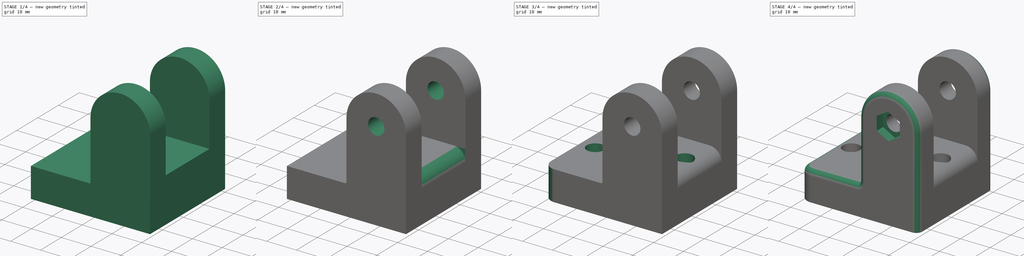
[diagram: build sequence overview — one tinted view per stage of 4, left to right]
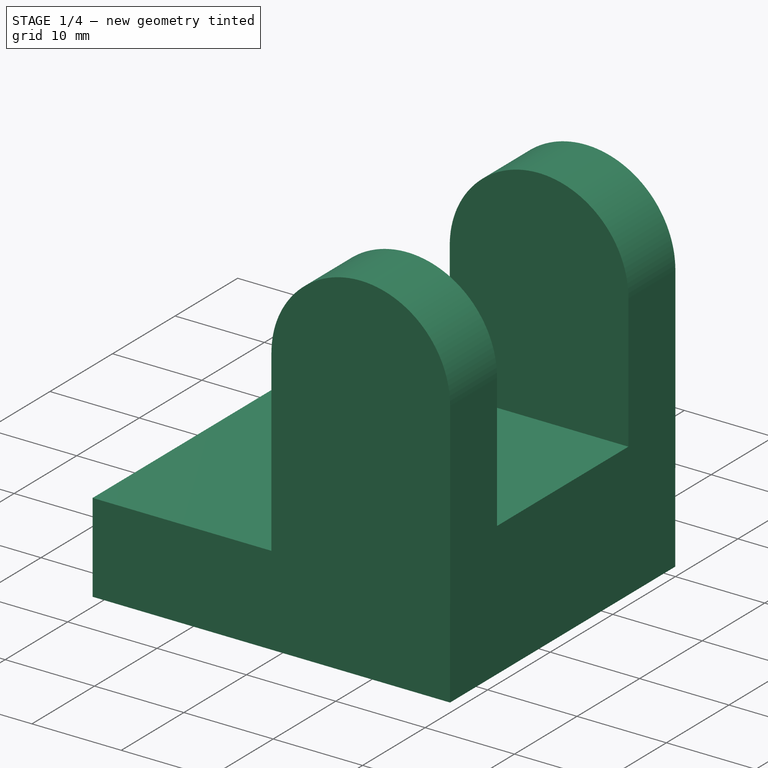
[diagram: stage 1 of 4 — iso view after this stage's code; geometry added in this stage tinted green]
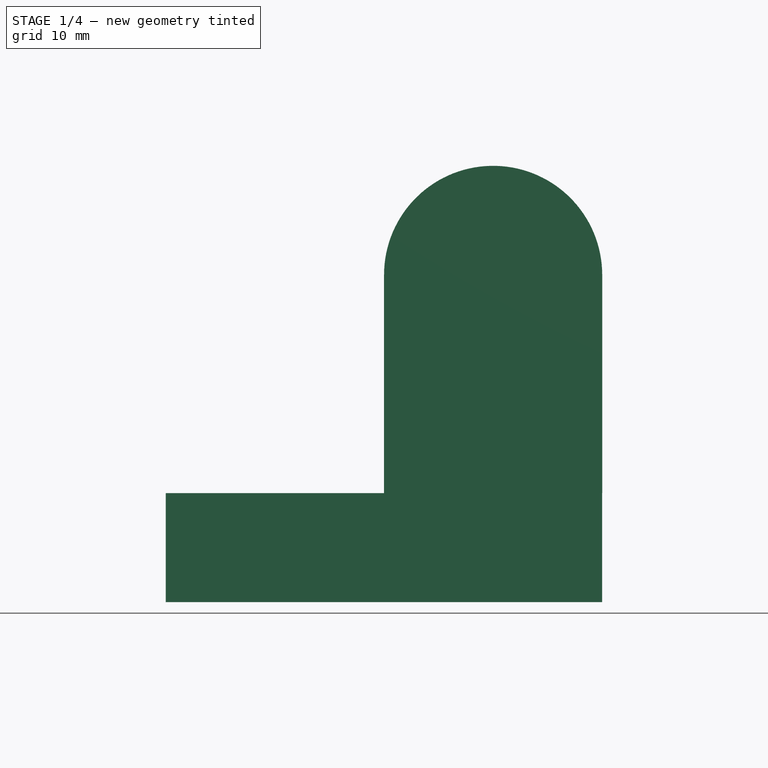
[diagram: stage 1 of 4 — front view after this stage's code; geometry added in this stage tinted green]
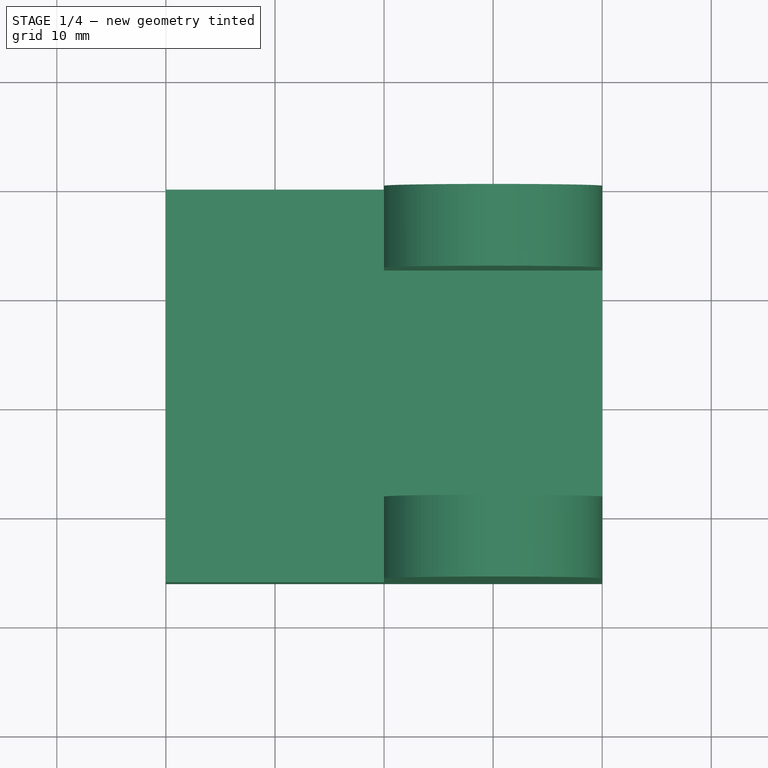
[diagram: stage 1 of 4 — top view after this stage's code; geometry added in this stage tinted green]
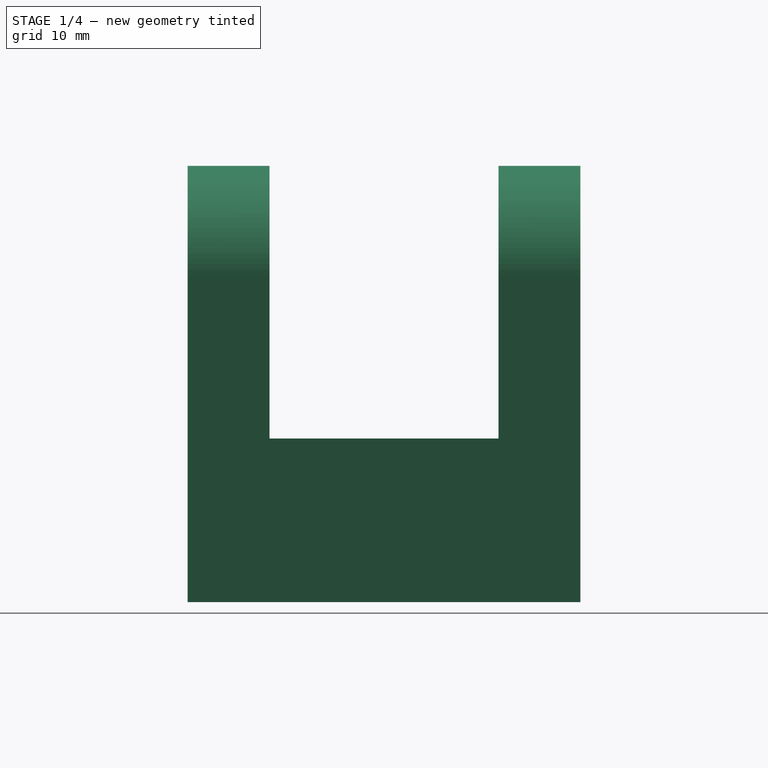
[diagram: stage 1 of 4 — right view after this stage's code; geometry added in this stage tinted green]
FCSTD DOCUMENT  (FreeCAD 1.0R38641 +468 (Git))
Label: 04pulley_holder_screw
License: All rights reserved
LicenseURL: https://en.wikipedia.org/wiki/All_rights_reserved
objects: Sketcher::SketchObject×5, PartDesign::Fillet×4, PartDesign::Pocket×3, PartDesign::Plane×2, PartDesign::Pad×1, PartDesign::Hole×1, PartDesign::Chamfer×1, PartDesign::Body×1
note: 43 computed .brp shape members not serialized (recipe doc carries the construction recipe); baked Part::Feature solids carry a one-line shape summary decoded from their .brp

FEATURE [Sketcher::SketchObject] Sketch
  ArcFitTolerance = 1e-06
  AttachmentSupport = -> [XZ_Plane]
  FullyConstrained = false
  MakeInternals = false
  MapMode = 5
  Placement = pos=(0,0,0) rot=(1,0,0;1.5708rad)
  sketch-geometry (13):
    g0: LineSegment StartX=-30.0081 StartY=0 StartZ=0 EndX=9.99187 EndY=0 EndZ=0
    g1: LineSegment [constr] StartX=9.99187 StartY=0 StartZ=0 EndX=10 EndY=30 EndZ=0
    g2: LineSegment [constr] StartX=10 StartY=30 StartZ=0 EndX=-10 EndY=30 EndZ=0
    g3: LineSegment [constr] StartX=-10 StartY=30 StartZ=0 EndX=-30.0081 EndY=0 EndZ=0
    g4: Circle [constr] CenterX=-2e-16 CenterY=30 CenterZ=0 NormalX=0 NormalY=0 NormalZ=1 AngleXU=0 Radius=10
    g5: LineSegment [constr] StartX=0 StartY=40 StartZ=0 EndX=0 EndY=0 EndZ=0
    g6: ArcOfCircle CenterX=-2e-16 CenterY=30 CenterZ=0 NormalX=0 NormalY=0 NormalZ=1 AngleXU=0 Radius=10 StartAngle=1e-16 EndAngle=3.14159
    g7: LineSegment StartX=-30.0081 StartY=0 StartZ=0 EndX=-30.0081 EndY=10 EndZ=0
    g8: LineSegment StartX=-30.0081 StartY=10 StartZ=0 EndX=-10 EndY=10 EndZ=0
    g9: LineSegment StartX=-10 StartY=10 StartZ=0 EndX=-10 EndY=30 EndZ=0
    g10: LineSegment StartX=10 StartY=30 StartZ=0 EndX=10 EndY=10 EndZ=0
    g11: LineSegment StartX=10 StartY=10 StartZ=0 EndX=9.99187 EndY=10 EndZ=0
    g12: LineSegment StartX=9.99187 StartY=10 StartZ=0 EndX=9.99187 EndY=0 EndZ=0
  constraints (34):
    c: PointOnObject(g0,g-1)
    c: Coincident(g0,g1)
    c: Coincident(g1,g2)
    c: Coincident(g2,g3)
    c: Coincident(g3,g0)
    c: Symmetric(g1,g2,g-2)
    c: Symmetric(g2,g2,g4)
    c: Diameter(g4) = 20
    c: PointOnObject(g5,g4)
    c: PointOnObject(g5,g0)
    c: Vertical(g5)
    c: PointOnObject(g5,g-2)
    c: DistanceY(g5,g5) = 40
    c: PointOnObject(g2,g4)
    c: Coincident(g6,g4)
    c: Coincident(g6,g2)
    c: Coincident(g6,g1)
    c: Coincident(g0,g7)
    c: Vertical(g7)
    c: Coincident(g7,g8)
    c: Horizontal(g8)
    c: Coincident(g8,g9)
    c: Coincident(g9,g2)
    c: Coincident(g1,g10)
    c: Coincident(g10,g11)
    c: Coincident(g11,g12)
    c: Coincident(g12,g0)
    c: Horizontal(g11)
    c: Vertical(g12)
    c: Vertical(g10)
    c: Symmetric(g8,g10,g5)
    c: DistanceX(g0,g0) = 40
    c: DistanceY(g12,g12) = 10
    c: PointOnObject(g0,g-1)
FEATURE [PartDesign::Pad] Pad
  Direction = (0,-1,2e-16)
  Length = 36
  Length2 = 10
  Placement = pos=(0,0,0) rot=(1,0,0;1.5708rad)
  Profile = -> Sketch
  ReferenceAxis = -> Sketch [N_Axis]
  Refine = true
  Suppressed = false
  Type = 0
FEATURE [PartDesign::Plane] DatumPlane
  AttachmentOffset = pos=(0,0,-18) rot=(0,0,1;0rad)
  AttachmentSupport = -> [Pad]
  Length = 66.9606
  MapMode = 5
  Placement = pos=(0,-18,-4e-15) rot=(-1,0,0;1.5708rad)
  ResizeMode = 0
  Width = 76.8795
FEATURE [Sketcher::SketchObject] Sketch001
  ArcFitTolerance = 1e-06
  AttachmentSupport = -> [DatumPlane]
  FullyConstrained = false
  MakeInternals = false
  MapMode = 5
  Placement = pos=(0,-18,-4e-15) rot=(-1,0,0;1.5708rad)
  sketch-geometry (4):
    g0: LineSegment StartX=-20.7566 StartY=-62.8901 StartZ=0 EndX=21.0193 EndY=-62.8901 EndZ=0
    g1: LineSegment StartX=21.0193 StartY=-62.8901 StartZ=0 EndX=21.0193 EndY=-15 EndZ=0
    g2: LineSegment StartX=21.0193 StartY=-15 StartZ=0 EndX=-20.7566 EndY=-15 EndZ=0
    g3: LineSegment StartX=-20.7566 StartY=-15 StartZ=0 EndX=-20.7566 EndY=-62.8901 EndZ=0
  constraints (9):
    c: Coincident(g0,g1)
    c: Coincident(g1,g2)
    c: Coincident(g2,g3)
    c: Coincident(g3,g0)
    c: Horizontal(g0)
    c: Horizontal(g2)
    c: Vertical(g1)
    c: Vertical(g3)
    c: DistanceY(g1,g-1) = 15
FEATURE [PartDesign::Pocket] Pocket
  BaseFeature = -> Pad
  Direction = (0,-1,-2e-16)
  Length = 21
  Length2 = 5
  Midplane = true
  Placement = pos=(0,0,0) rot=(1,0,0;1.5708rad)
  Profile = -> Sketch001
  ReferenceAxis = -> Sketch001 [N_Axis]
  Refine = true
  Suppressed = false
  Type = 0
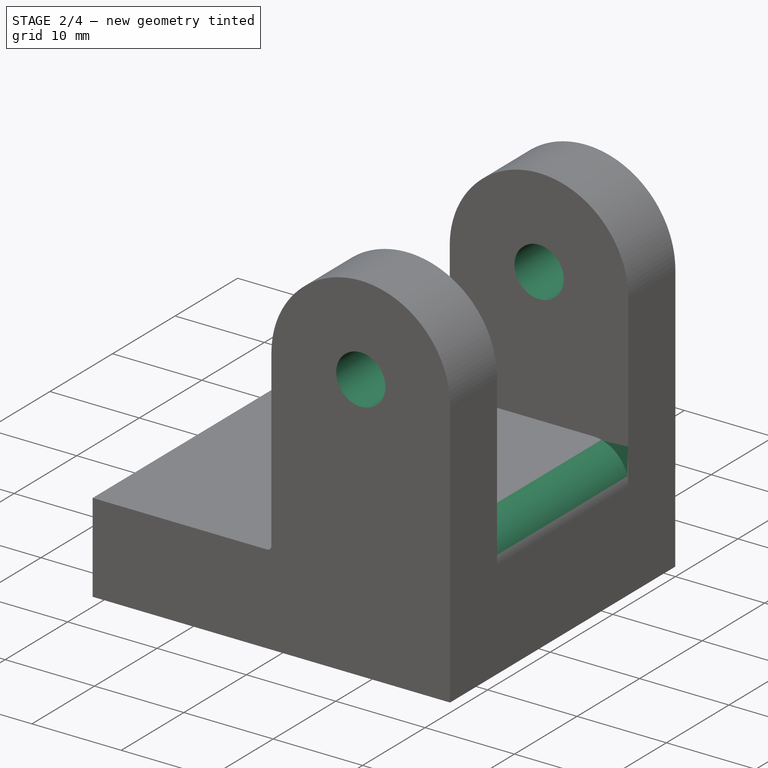
[diagram: stage 2 of 4 — iso view after this stage's code; geometry added in this stage tinted green]
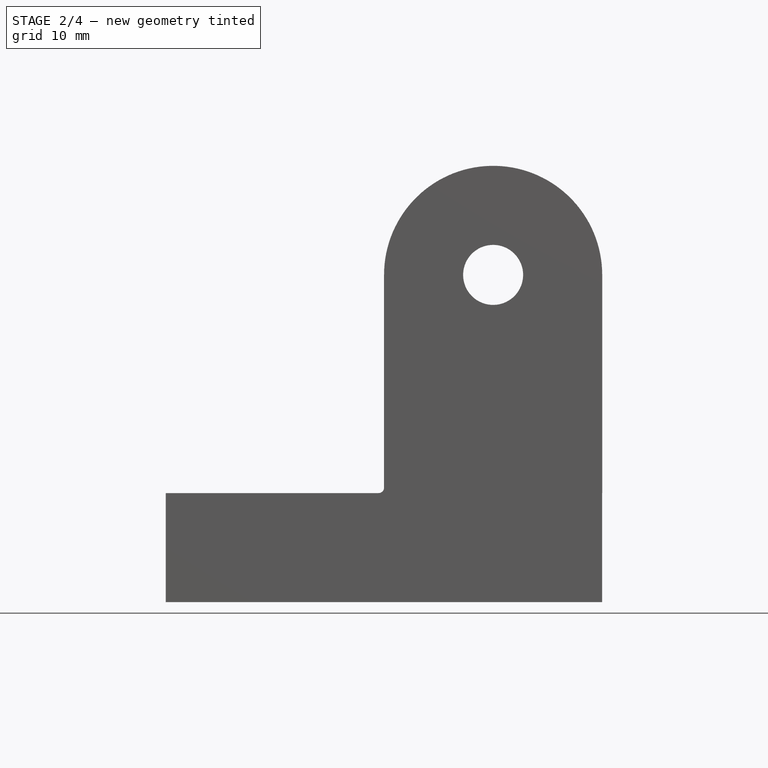
[diagram: stage 2 of 4 — front view after this stage's code; geometry added in this stage tinted green]
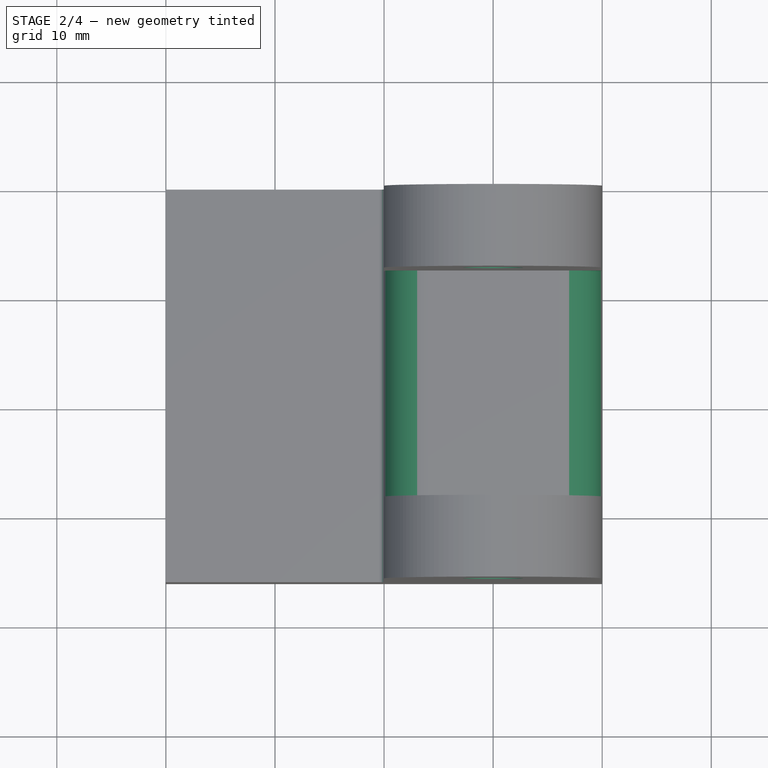
[diagram: stage 2 of 4 — top view after this stage's code; geometry added in this stage tinted green]
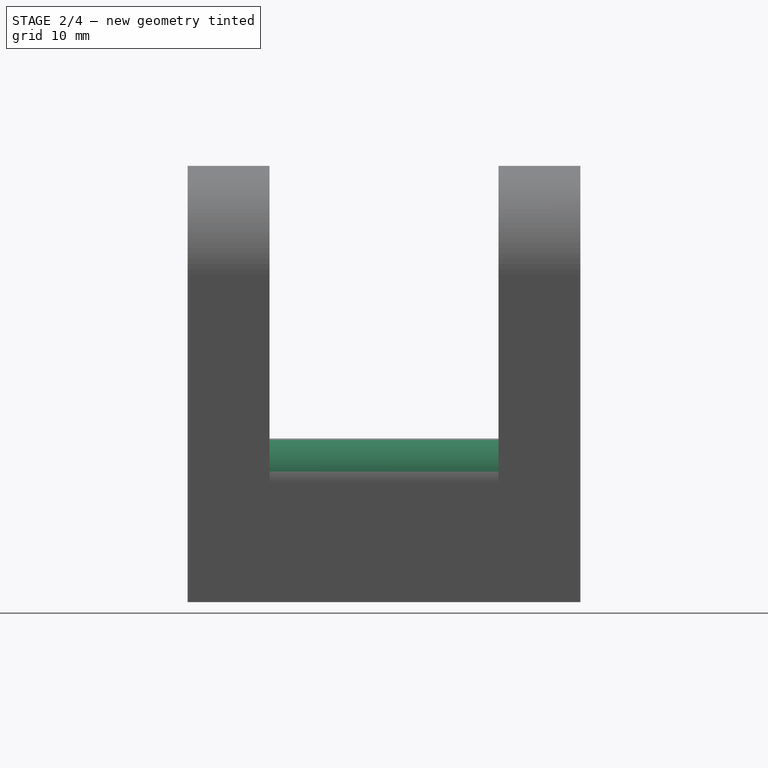
[diagram: stage 2 of 4 — right view after this stage's code; geometry added in this stage tinted green]
FEATURE [Sketcher::SketchObject] Sketch002
  ArcFitTolerance = 1e-06
  AttachmentSupport = -> [Pocket]
  ExternalGeometry = -> [Pocket]
  FullyConstrained = true
  MakeInternals = false
  MapMode = 5
  Placement = pos=(0,3.2e-15,0) rot=(-1,0,0;1.5708rad)
  sketch-geometry (1):
    g0: Circle CenterX=0 CenterY=-30 CenterZ=0 NormalX=0 NormalY=0 NormalZ=1 AngleXU=0 Radius=2.75
  constraints (2):
    c: Coincident(g0,g-3)
    c: Diameter(g0) = 5.5
FEATURE [PartDesign::Pocket] Pocket001
  BaseFeature = -> Pocket
  Direction = (0,-1,-2e-16)
  Length = 5
  Length2 = 5
  Placement = pos=(0,0,0) rot=(1,0,0;1.5708rad)
  Profile = -> Sketch002
  ReferenceAxis = -> Sketch002 [N_Axis]
  Refine = true
  Suppressed = false
  Type = 1
FEATURE [PartDesign::Plane] DatumPlane001
  AttachmentOffset = pos=(0,0,-16) rot=(0,0,1;0rad)
  AttachmentSupport = -> [Pocket001]
  Length = 66.5935
  MapMode = 5
  Placement = pos=(0,0,16) rot=(1,0,0;3.14159rad)
  ResizeMode = 0
  Width = 72.5853
FEATURE [PartDesign::Fillet] Fillet
  Base = -> Pocket001 [Edge34,Edge26]
  BaseFeature = -> Pocket001
  Placement = pos=(0,0,0) rot=(1,0,0;1.5708rad)
  Radius = 4
  Refine = true
  SupportTransform = false
  Suppressed = false
  UseAllEdges = false
FEATURE [PartDesign::Fillet] Fillet001
  Base = -> Fillet [Edge8]
  BaseFeature = -> Fillet
  Placement = pos=(0,0,0) rot=(1,0,0;1.5708rad)
  Radius = 0.5
  Refine = true
  SupportTransform = false
  Suppressed = false
  UseAllEdges = false
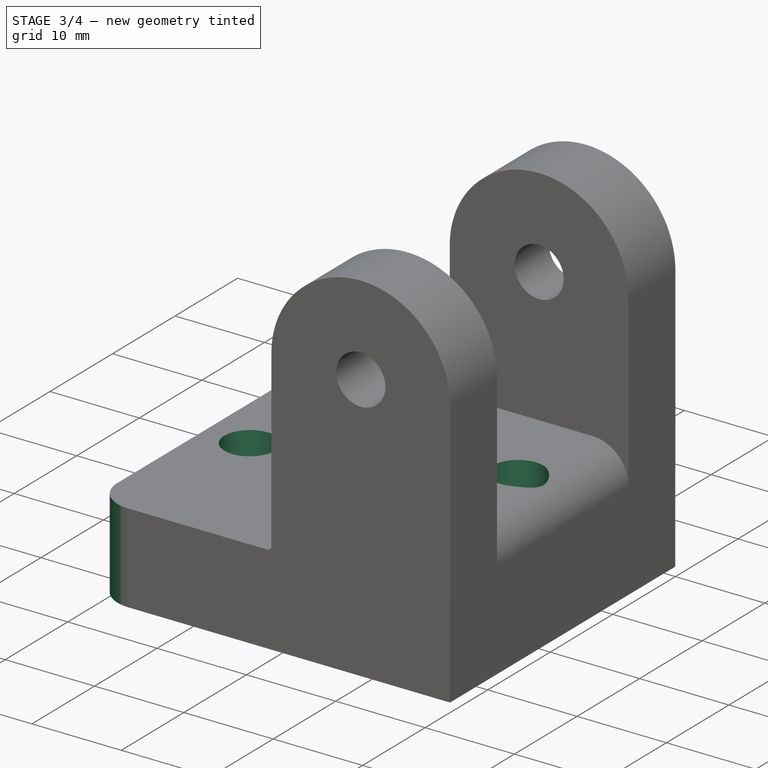
[diagram: stage 3 of 4 — iso view after this stage's code; geometry added in this stage tinted green]
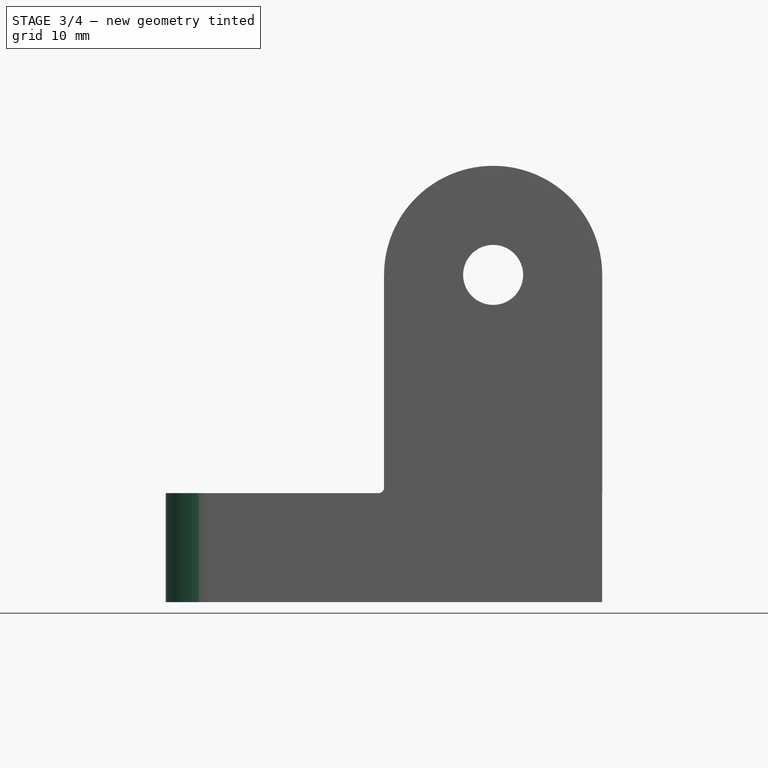
[diagram: stage 3 of 4 — front view after this stage's code; geometry added in this stage tinted green]
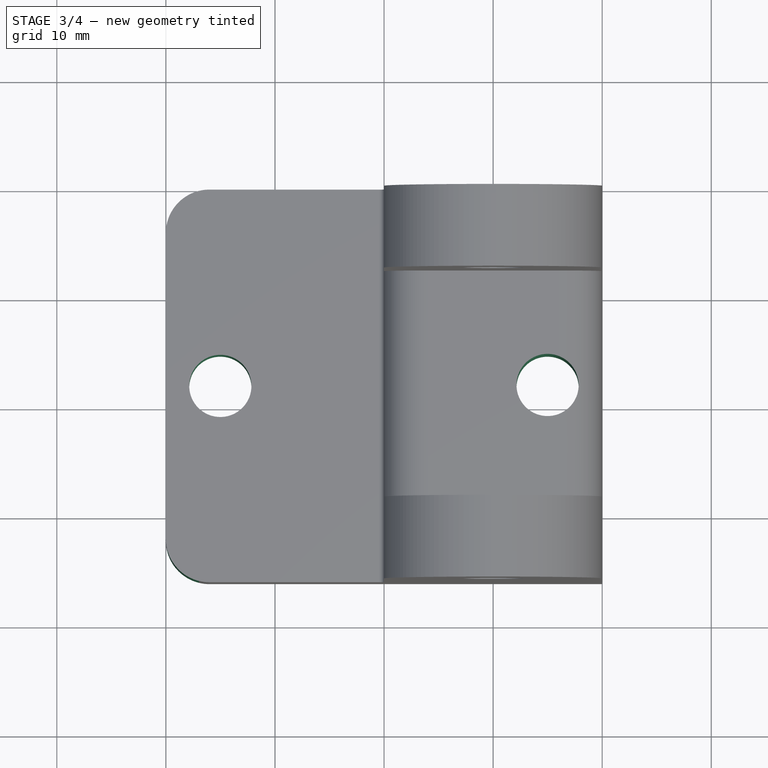
[diagram: stage 3 of 4 — top view after this stage's code; geometry added in this stage tinted green]
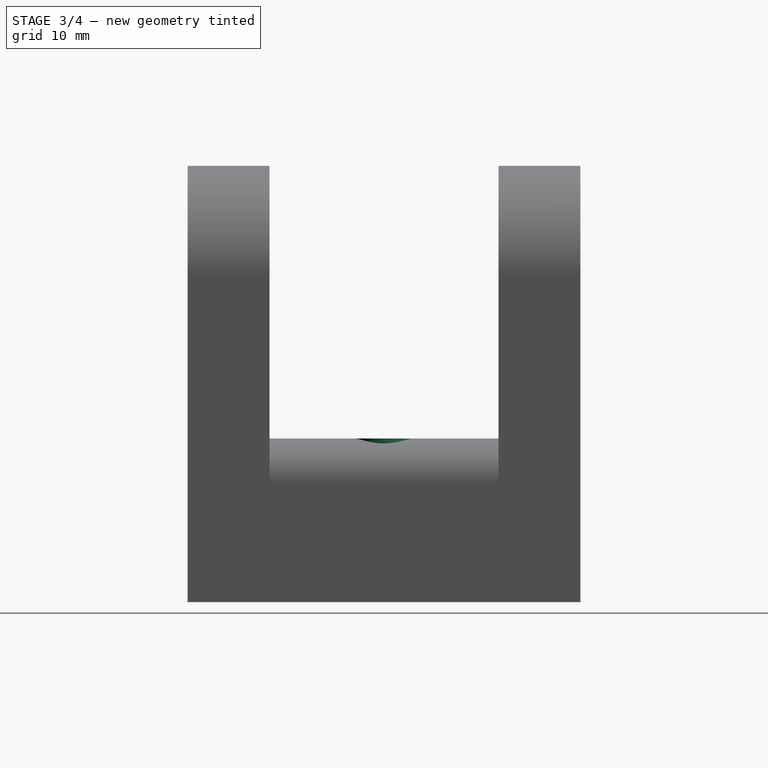
[diagram: stage 3 of 4 — right view after this stage's code; geometry added in this stage tinted green]
FEATURE [Sketcher::SketchObject] Sketch003
  ArcFitTolerance = 1e-06
  AttachmentSupport = -> [DatumPlane001]
  ExternalGeometry = -> [Fillet001]
  FullyConstrained = true
  MakeInternals = false
  MapMode = 5
  Placement = pos=(0,0,16) rot=(1,0,0;3.14159rad)
  expr: Constraints[1] = 36 / 2
  sketch-geometry (4):
    g0: Circle CenterX=4.99186 CenterY=18 CenterZ=0 NormalX=0 NormalY=0 NormalZ=1 AngleXU=0 Radius=2.8
    g1: Circle CenterX=-25.0081 CenterY=18 CenterZ=0 NormalX=0 NormalY=0 NormalZ=1 AngleXU=0 Radius=2.8
    g2: GeomPoint X=-10.0081 Y=18 Z=0
    g3: GeomPoint X=-10.0081 Y=18 Z=0
  constraints (7):
    c: DistanceX(g1,g0) = 30
    c: DistanceY(g-1,g0) = 18
    c: Diameter(g0) = 5.6
    c: Equal(g1,g0)
    c: Symmetric(g-3,g-4,g2)
    c: Symmetric(g1,g0,g3)
    c: Coincident(g2,g3)
FEATURE [PartDesign::Hole] Hole
  BaseFeature = -> Fillet001
  CustomThreadClearance = 0
  Depth = 135.358
  DepthType = 1
  Diameter = 5.7
  DrillForDepth = false
  DrillPoint = 1
  DrillPointAngle = 118
  HoleCutCountersinkAngle = 90
  HoleCutCustomValues = false
  HoleCutDepth = 0
  HoleCutDiameter = 9.69
  HoleCutType = 0
  ModelThread = false
  Placement = pos=(0,0,0) rot=(1,0,0;1.5708rad)
  Profile = -> Sketch003
  Refine = true
  Reversed = true
  Suppressed = false
  Tapered = false
  TaperedAngle = 90
  ThreadClass = 0
  ThreadDepth = 135.358
  ThreadDepthType = 0
  ThreadDirection = 0
  ThreadFit = 0
  ThreadSize = 0
  ThreadType = 0
  Threaded = false
  UseCustomThreadClearance = false
FEATURE [PartDesign::Fillet] Fillet002
  Base = -> Hole [Edge13,Edge25]
  BaseFeature = -> Hole
  Placement = pos=(0,0,0) rot=(1,0,0;1.5708rad)
  Radius = 4
  Refine = true
  SupportTransform = false
  Suppressed = false
  UseAllEdges = false
FEATURE [PartDesign::Chamfer] Chamfer
  Angle = 45
  Base = -> Fillet002 [Edge10]
  BaseFeature = -> Fillet002
  ChamferType = 0
  FlipDirection = false
  Placement = pos=(0,0,0) rot=(1,0,0;1.5708rad)
  Refine = true
  Size = 2
  Size2 = 1
  SupportTransform = false
  Suppressed = false
  UseAllEdges = false
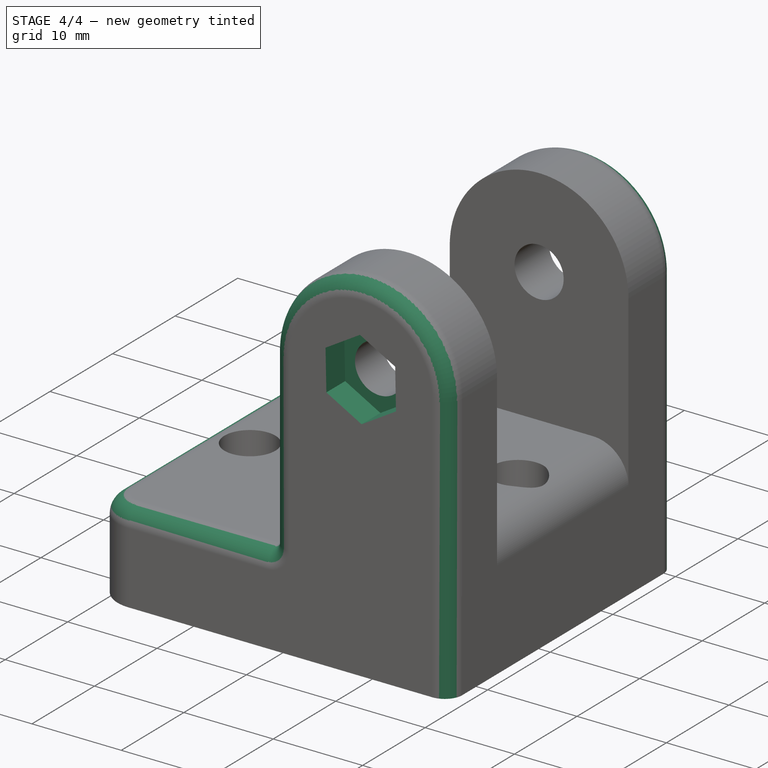
[diagram: stage 4 of 4 — iso view after this stage's code; geometry added in this stage tinted green]
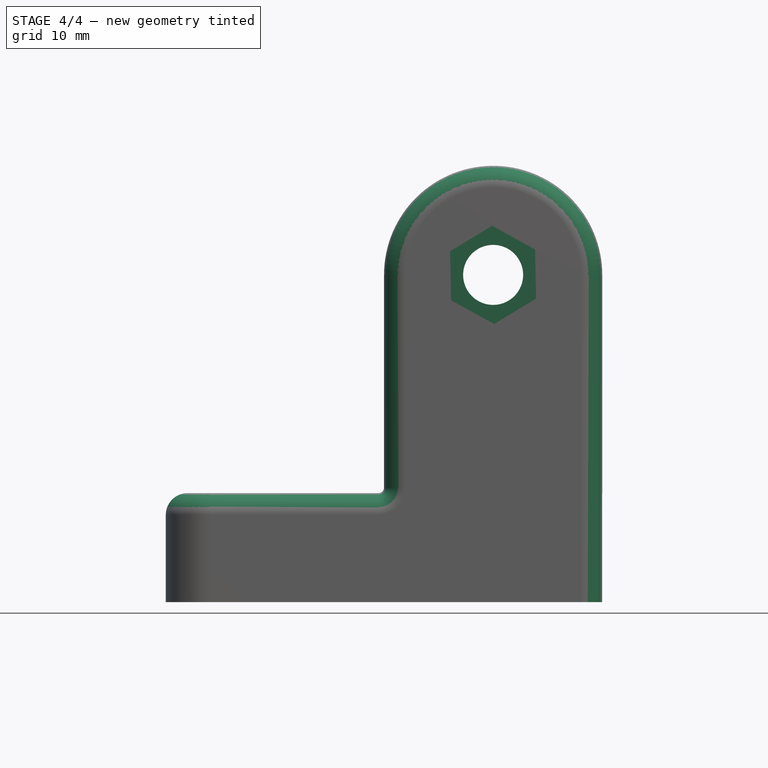
[diagram: stage 4 of 4 — front view after this stage's code; geometry added in this stage tinted green]
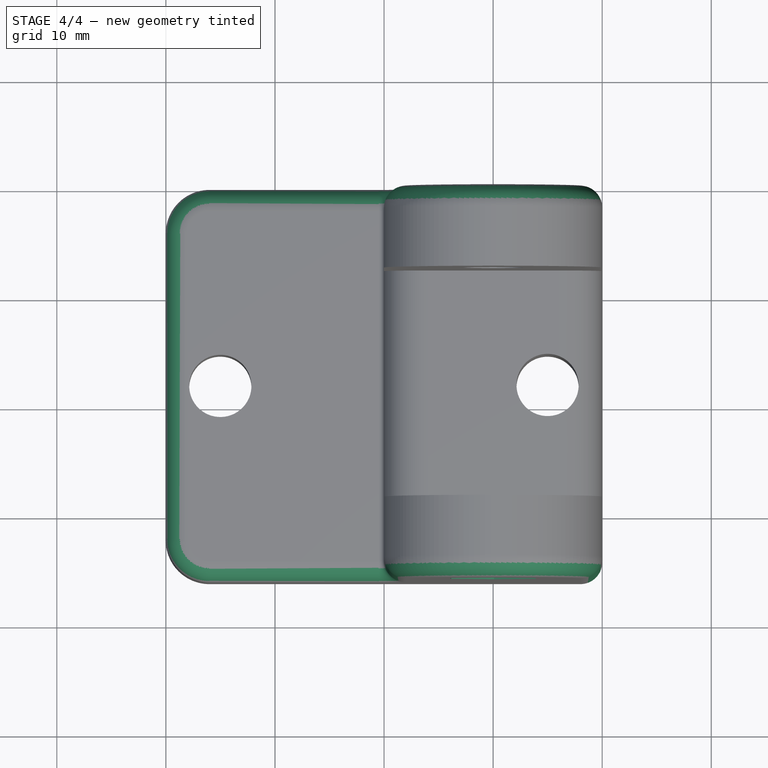
[diagram: stage 4 of 4 — top view after this stage's code; geometry added in this stage tinted green]
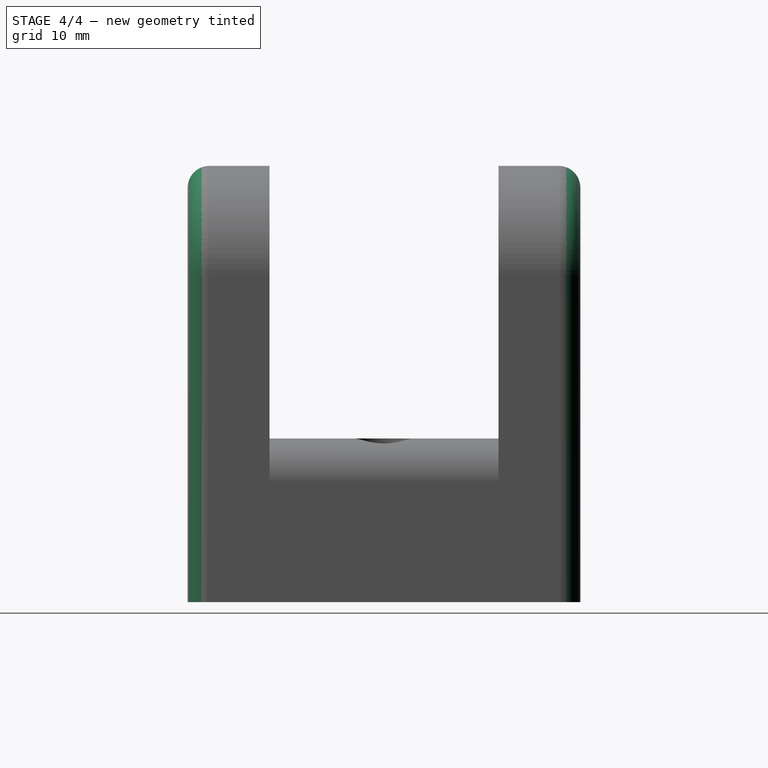
[diagram: stage 4 of 4 — right view after this stage's code; geometry added in this stage tinted green]
FEATURE [Sketcher::SketchObject] Sketch004
  ArcFitTolerance = 1e-06
  AttachmentSupport = -> [Chamfer]
  ExternalGeometry = -> [Chamfer]
  FullyConstrained = false
  MakeInternals = false
  MapMode = 5
  Placement = pos=(0,-36,0) rot=(1,0,0;1.5708rad)
  sketch-geometry (7):
    g0: LineSegment StartX=-0.0937929 StartY=34.5 StartZ=0 EndX=-3.94401 EndY=32.1688 EndZ=0
    g1: LineSegment StartX=-3.94401 StartY=32.1688 StartZ=0 EndX=-3.85022 EndY=27.6688 EndZ=0
    g2: LineSegment StartX=-3.85022 StartY=27.6688 StartZ=0 EndX=0.0937929 EndY=25.5 EndZ=0
    g3: LineSegment StartX=0.0937929 StartY=25.5 StartZ=0 EndX=3.94401 EndY=27.8312 EndZ=0
    g4: LineSegment StartX=3.94401 StartY=27.8312 StartZ=0 EndX=3.85022 EndY=32.3312 EndZ=0
    g5: LineSegment StartX=3.85022 StartY=32.3312 StartZ=0 EndX=-0.0937929 EndY=34.5 EndZ=0
    g6: Circle [constr] CenterX=0 CenterY=30 CenterZ=0 NormalX=0 NormalY=0 NormalZ=1 AngleXU=0 Radius=4.50098
  constraints (15):
    c: Coincident(g0,g1)
    c: Coincident(g1,g2)
    c: Coincident(g2,g3)
    c: Coincident(g3,g4)
    c: Coincident(g4,g5)
    c: Coincident(g5,g0)
    c: Equal(g0, g1-g5) x5
    c: PointOnObject(g0,g6)
    c: PointOnObject(g1,g6)
    c: PointOnObject(g2,g6)
    c: PointOnObject(g3,g6)
    c: PointOnObject(g4,g6)
    c: PointOnObject(g5,g6)
    c: Coincident(g6,g-3)
    c: DistanceY(g2,g0) = 9
FEATURE [PartDesign::Pocket] Pocket002
  BaseFeature = -> Chamfer
  Direction = (0,1,-2e-16)
  Length = 3
  Length2 = 5
  Placement = pos=(0,0,0) rot=(1,0,0;1.5708rad)
  Profile = -> Sketch004
  ReferenceAxis = -> Sketch004 [N_Axis]
  Refine = true
  Suppressed = false
  Type = 0
FEATURE [PartDesign::Fillet] Fillet003
  Base = -> Pocket002 [Edge10,Edge48]
  BaseFeature = -> Pocket002
  Placement = pos=(0,0,0) rot=(1,0,0;1.5708rad)
  Radius = 2
  Refine = true
  SupportTransform = false
  Suppressed = false
  UseAllEdges = false
FEATURE [PartDesign::Body] Body
  AllowCompound = false
  Group = -> [Sketch,Pad,DatumPlane,Sketch001,Pocket,Sketch002,Pocket001,DatumPlane001,Sketch003,Fillet,Fillet001,Hole,Fillet002,Chamfer,Sketch004,Pocket002,Fillet003]
  Origin = -> Origin
  Tip = -> Fillet003
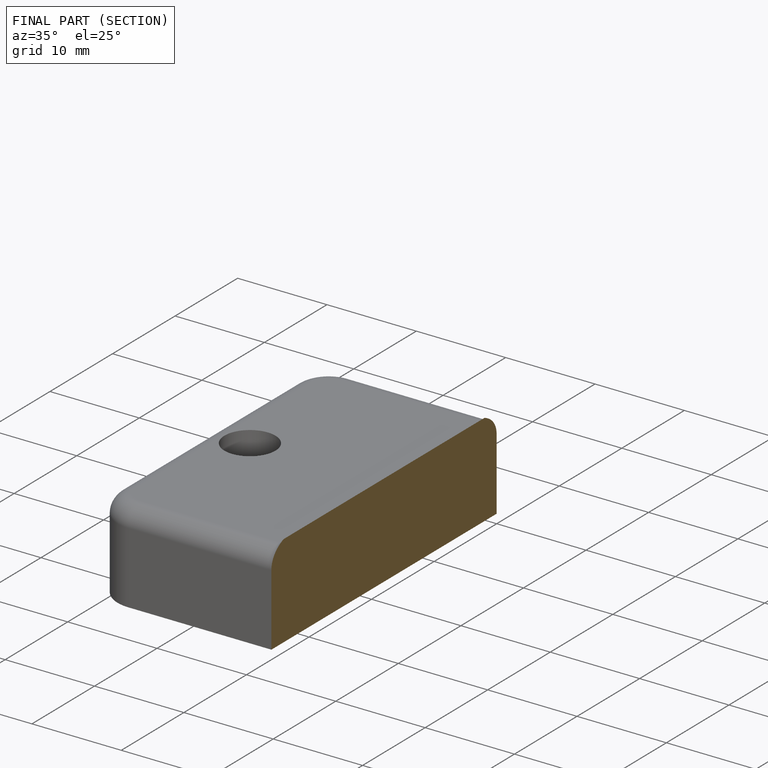
[diagram: finished part — half-section view (interior)]
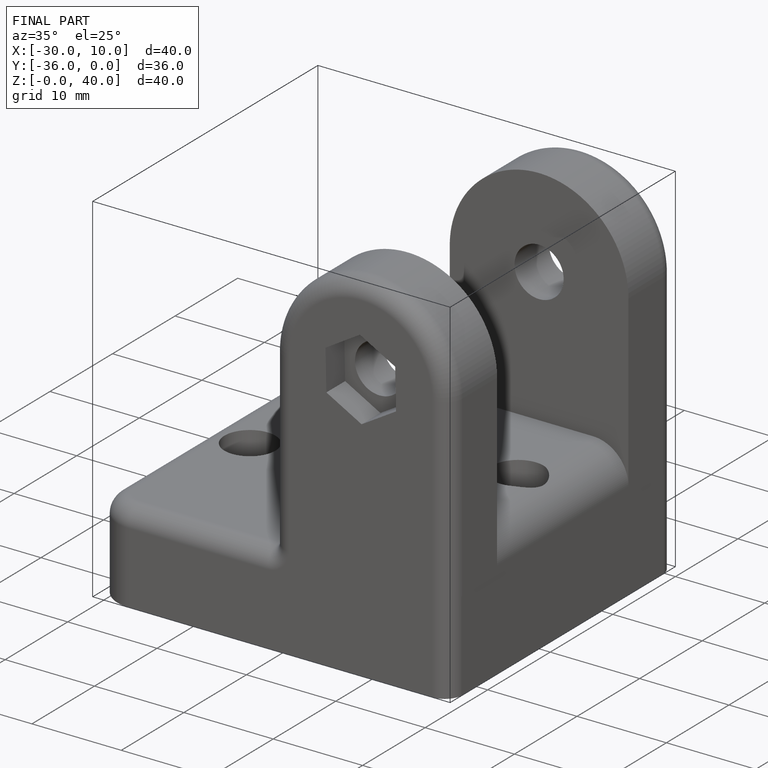
[diagram: finished part — iso view with bounding-box wireframe]
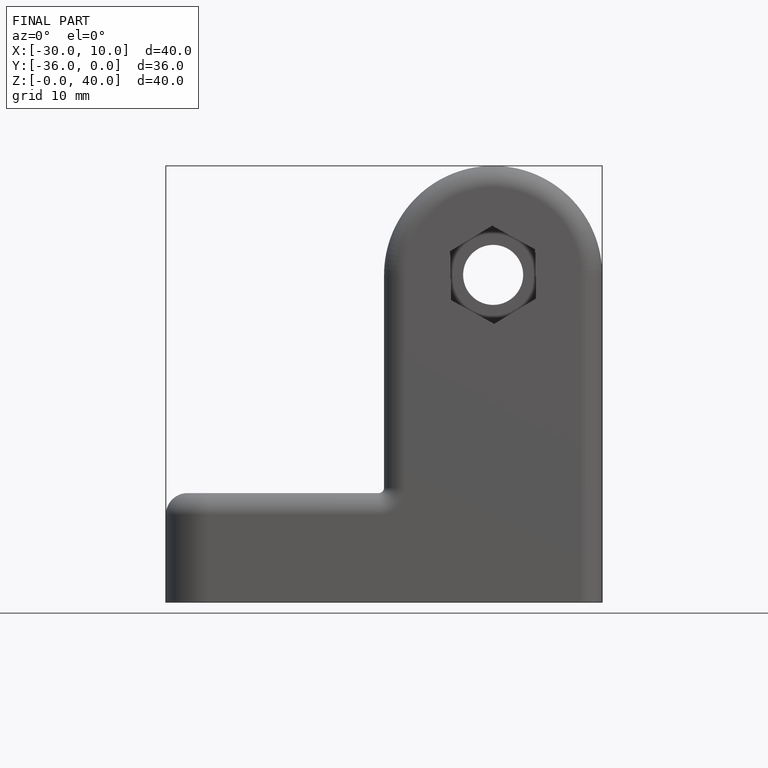
[diagram: finished part — front view with bounding-box wireframe]
